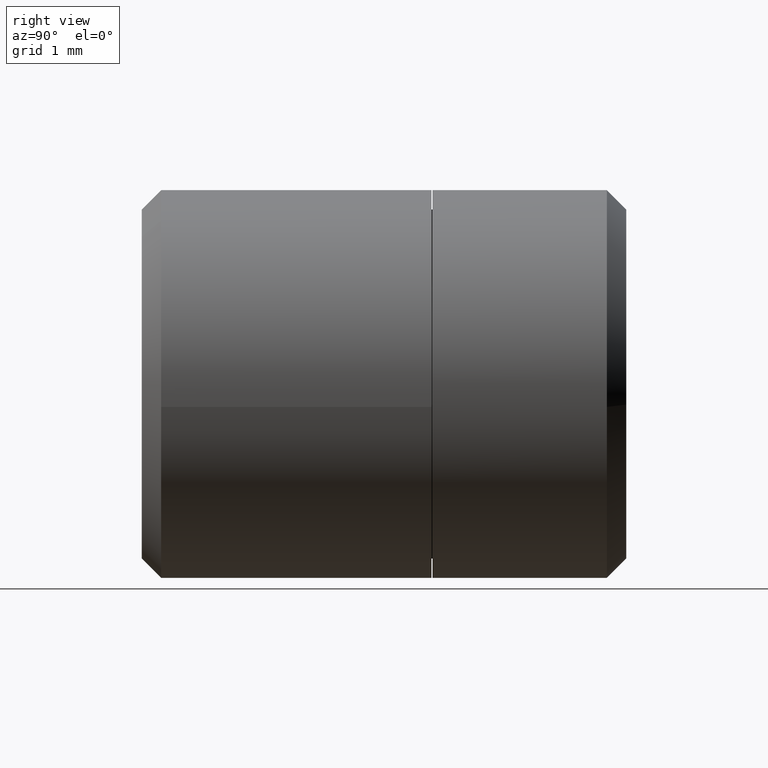
[diagram: clean part render]
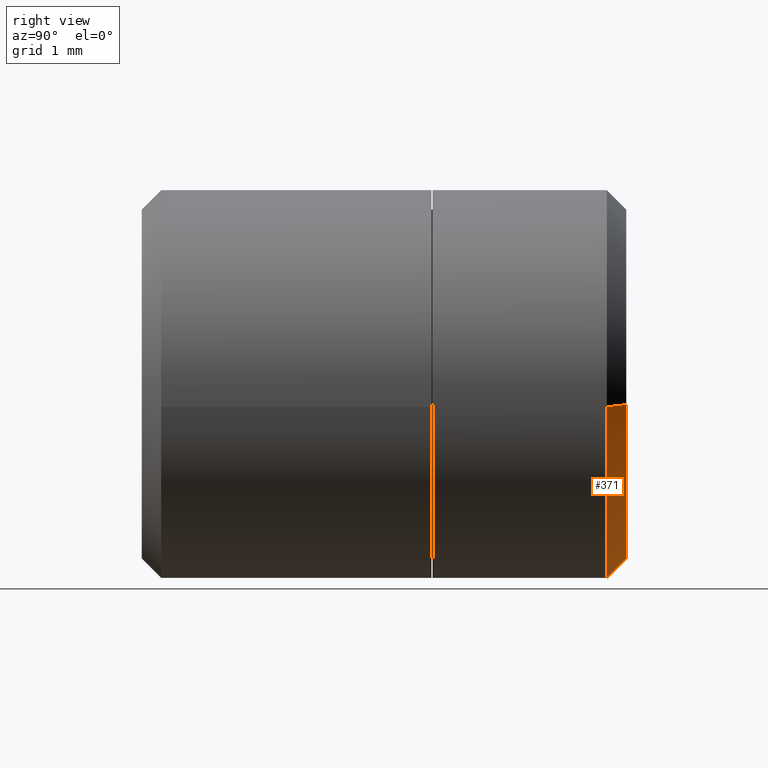
[diagram: same view with one face highlighted and labeled with its STEP entity id]
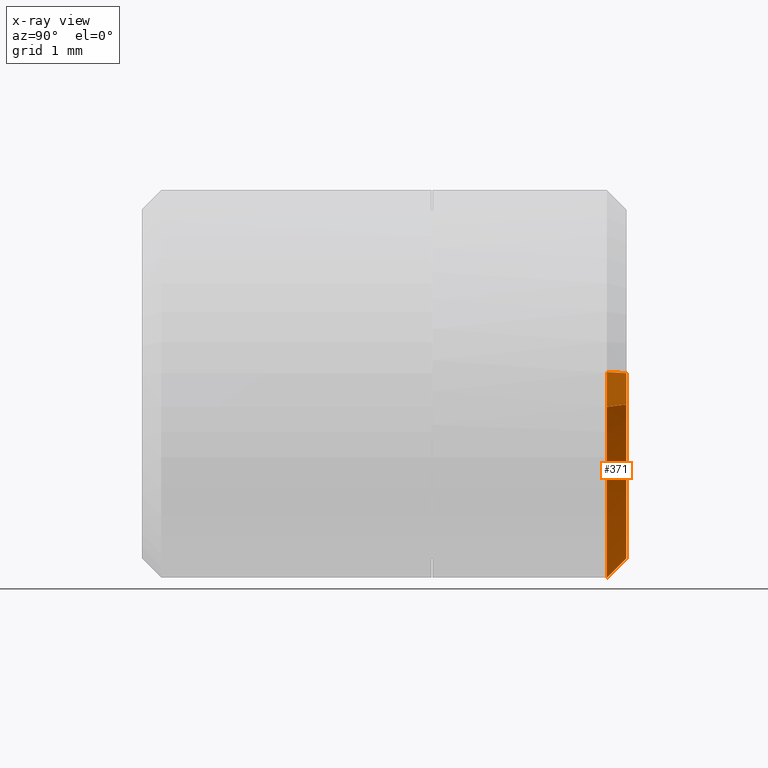
[diagram: x-ray of the same camera — body ghosted, the highlighted face saturated]
A machine part, right view. The second image highlights one B-rep face of the part: STEP entity #371.
The next image is the same camera in x-ray: the body ghosted, the highlighted face saturated — about 17% of this face is hidden behind the body in this view.
In plain terms, the highlighted face is a freeform B-spline surface patch.
Its self-contained STEP definition (entity closure, byte-faithful):
#79=CARTESIAN_POINT('',(-1.996269596843765,4.800002999999885,0.122097079070154));
#80=VERTEX_POINT('',#79);
#161=CARTESIAN_POINT('',(1.986019052727345,4.800002999999828,-0.236068469314878));
#162=VERTEX_POINT('',#161);
#212=CARTESIAN_POINT('',(0.0,4.800002999999999,-2.000000000000008));
#213=VERTEX_POINT('',#212);
#214=CARTESIAN_POINT('',(-1.996269596843766,4.800002999999885,0.122097079070154));
#215=CARTESIAN_POINT('',(-2.0,4.800002999999999,0.061105526598061));
#216=CARTESIAN_POINT('',(-2.0,4.800002999999999,-7.277231E-015));
#217=CARTESIAN_POINT('',(-2.000000000000000,4.800003000000000,-2.000000000000008));
#218=CARTESIAN_POINT('',(0.0,4.800002999999999,-2.000000000000008));
#226=(BOUNDED_CURVE()B_SPLINE_CURVE(2,(#214,#215,#216,#217,#218),.UNSPECIFIED.,.F.,.U.)B_SPLINE_CURVE_WITH_KNOTS((3,2,3),(0.739332962241815,0.750000000000000,1.0),.UNSPECIFIED.)CURVE()GEOMETRIC_REPRESENTATION_ITEM()RATIONAL_B_SPLINE_CURVE((0.976072041672873,0.987502787903202,1.0,0.707106781186548,1.0))REPRESENTATION_ITEM(''));
#227=EDGE_CURVE('',#80,#213,#226,.T.);
#229=CARTESIAN_POINT('',(0.0,4.800002999999999,-2.000000000000008));
#230=CARTESIAN_POINT('',(1.776349051900332,4.800002999999999,-2.000000000000008));
#231=CARTESIAN_POINT('',(1.986019052727345,4.800002999999828,-0.236068469314878));
#239=(BOUNDED_CURVE()B_SPLINE_CURVE(2,(#229,#230,#231),.UNSPECIFIED.,.F.,.U.)B_SPLINE_CURVE_WITH_KNOTS((3,3),(0.0,0.229562473515417),.UNSPECIFIED.)CURVE()GEOMETRIC_REPRESENTATION_ITEM()RATIONAL_B_SPLINE_CURVE((1.0,0.731050832853166,0.956026754187441))REPRESENTATION_ITEM(''));
#240=EDGE_CURVE('',#213,#162,#239,.T.);
#268=CARTESIAN_POINT('',(1.787414168426023,5.000006999999906,-0.212461268280169));
#269=VERTEX_POINT('',#268);
#270=CARTESIAN_POINT('',(1.787414168426023,5.000006999999906,-0.212461268280169));
#271=CARTESIAN_POINT('',(1.986019052727345,4.800002999999828,-0.236068469314878));
#272=QUASI_UNIFORM_CURVE('',1,(#270,#271),.UNSPECIFIED.,.F.,.U.);
#273=EDGE_CURVE('',#269,#162,#272,.T.);
#292=CARTESIAN_POINT('',(-1.796639642755264,5.000006999999432,0.109887188021407));
#293=VERTEX_POINT('',#292);
#307=CARTESIAN_POINT('',(-1.796639642755264,5.000006999999432,0.109887188021407));
#308=CARTESIAN_POINT('',(-1.996269596843765,4.800002999999885,0.122097079070154));
#309=QUASI_UNIFORM_CURVE('',1,(#307,#308),.UNSPECIFIED.,.F.,.U.);
#310=EDGE_CURVE('',#293,#80,#309,.T.);
#317=CARTESIAN_POINT('',(-1.791648893902727,5.005007100000001,0.109581940740801));
#318=CARTESIAN_POINT('',(-1.901230834643535,5.005007100000001,-1.682066953161926));
#319=CARTESIAN_POINT('',(-0.109581940740808,5.005007100000001,-1.791648893902734));
#320=CARTESIAN_POINT('',(1.582367855310654,5.005007100000001,-1.895132976592319));
#321=CARTESIAN_POINT('',(1.782449046318469,5.005007100000002,-0.211871088253615));
#322=CARTESIAN_POINT('',(-2.001385114417259,4.794877897499998,0.122409957527929));
#323=CARTESIAN_POINT('',(-2.123795071945195,4.794877897499998,-1.878975156889329));
#324=CARTESIAN_POINT('',(-0.122409957527937,4.794877897499998,-2.001385114417266));
#325=CARTESIAN_POINT('',(1.767604959838212,4.794877897499998,-2.116983378886881));
#326=CARTESIAN_POINT('',(1.991108302887555,4.794877897500000,-0.236673403840022));
#334=(BOUNDED_SURFACE()B_SPLINE_SURFACE(2,1,((#317,#322),(#318,#323),(#319,#324),(#320,#325),(#321,#326)),.UNSPECIFIED.,.F.,.F.,.U.)B_SPLINE_SURFACE_WITH_KNOTS((3,2,3),(2,2),(0.0,3.322200004384079,6.511512008592796),(0.0,0.297166825123025),.UNSPECIFIED.)GEOMETRIC_REPRESENTATION_ITEM()RATIONAL_B_SPLINE_SURFACE(((1.0,1.0),(0.707106781186548,0.707106781186548),(1.0,1.0),(0.718822509939086,0.718822509939086),(0.977505800795127,0.977505800795127)))REPRESENTATION_ITEM('')SURFACE());
#335=ORIENTED_EDGE('',*,*,#240,.F.);
#336=ORIENTED_EDGE('',*,*,#227,.F.);
#337=ORIENTED_EDGE('',*,*,#310,.F.);
#338=CARTESIAN_POINT('',(0.0,5.000007000000000,-1.799997000000007));
#339=VERTEX_POINT('',#338);
#340=CARTESIAN_POINT('',(-1.796639642755263,5.000006999999432,0.109887188021407));
#341=CARTESIAN_POINT('',(-1.799997000000000,5.000007000000001,0.054994882283431));
#342=CARTESIAN_POINT('',(-1.799997000000000,5.000007000000000,-7.277231E-015));
#343=CARTESIAN_POINT('',(-1.799997000000000,5.000007000000000,-1.799997000000007));
#344=CARTESIAN_POINT('',(0.0,5.000007000000000,-1.799997000000007));
#352=(BOUNDED_CURVE()B_SPLINE_CURVE(2,(#340,#341,#342,#343,#344),.UNSPECIFIED.,.F.,.U.)B_SPLINE_CURVE_WITH_KNOTS((3,2,3),(0.739332962241151,0.750000000000000,1.0),.UNSPECIFIED.)CURVE()GEOMETRIC_REPRESENTATION_ITEM()RATIONAL_B_SPLINE_CURVE((0.976072041671450,0.987502787902424,1.0,0.707106781186548,1.0))REPRESENTATION_ITEM(''));
#353=EDGE_CURVE('',#293,#339,#352,.T.);
#354=ORIENTED_EDGE('',*,*,#353,.T.);
#355=CARTESIAN_POINT('',(0.0,5.000007000000000,-1.799997000000007));
#356=CARTESIAN_POINT('',(1.598711482187640,5.000006999999999,-1.799997000000007));
#357=CARTESIAN_POINT('',(1.787414168426023,5.000006999999906,-0.212461268280169));
#365=(BOUNDED_CURVE()B_SPLINE_CURVE(2,(#355,#356,#357),.UNSPECIFIED.,.F.,.U.)B_SPLINE_CURVE_WITH_KNOTS((3,3),(0.0,0.229562473515514),.UNSPECIFIED.)CURVE()GEOMETRIC_REPRESENTATION_ITEM()RATIONAL_B_SPLINE_CURVE((1.0,0.731050832853053,0.956026754187630))REPRESENTATION_ITEM(''));
#366=EDGE_CURVE('',#339,#269,#365,.T.);
#367=ORIENTED_EDGE('',*,*,#366,.T.);
#368=ORIENTED_EDGE('',*,*,#273,.T.);
#369=EDGE_LOOP('',(#335,#336,#337,#354,#367,#368));
#370=FACE_OUTER_BOUND('',#369,.T.);
#371=ADVANCED_FACE('',(#370),#334,.T.);